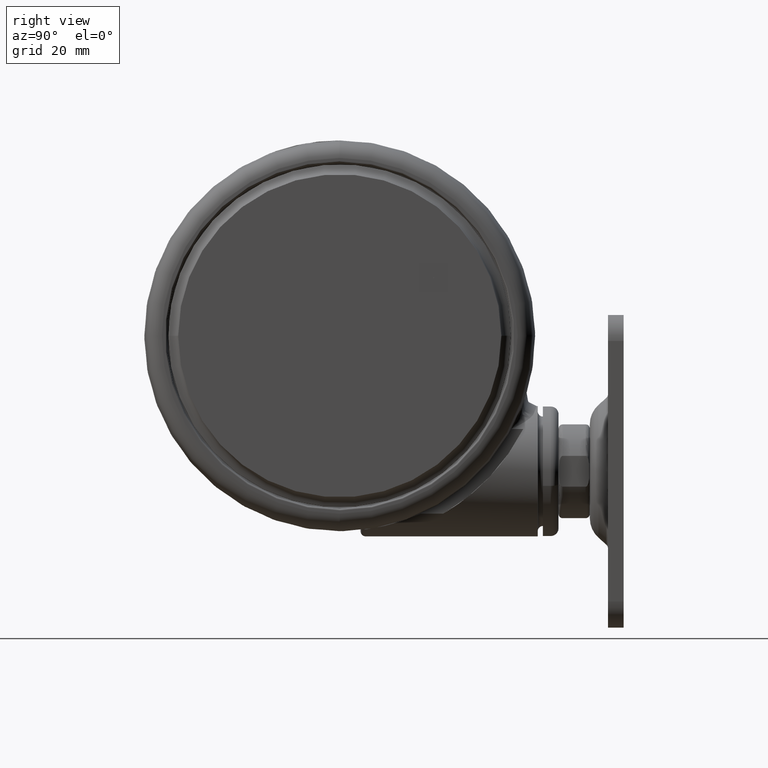
[diagram: clean part render]
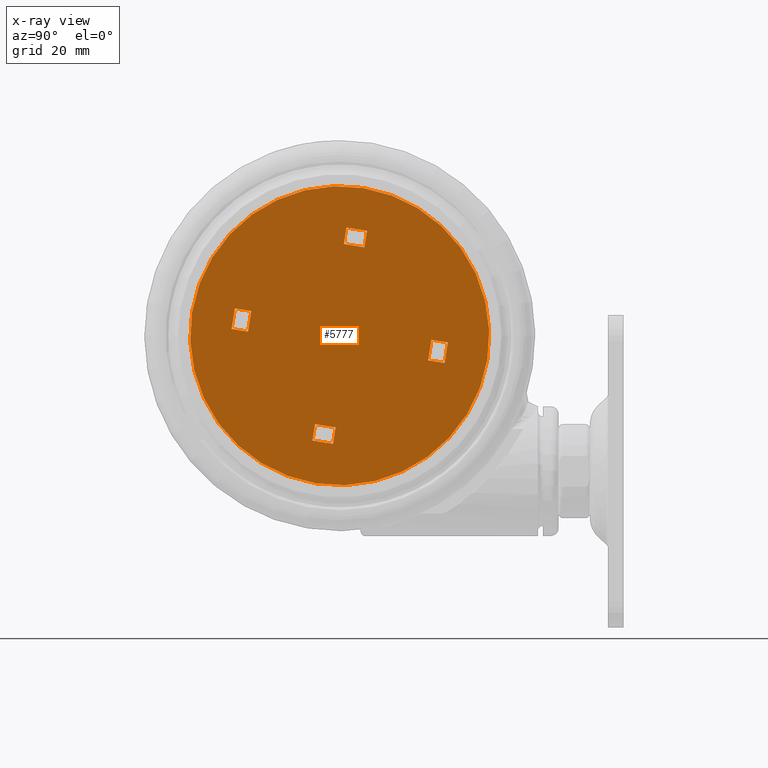
[diagram: x-ray — body ghosted, one internal face saturated and labeled with its STEP entity id]
A machine part, right view, then the same camera in x-ray: the body is ghosted and one INTERNAL B-rep face — a face not visible from any outside direction — is saturated and labeled: STEP entity #5777.
In plain terms, the highlighted planar face has unit normal (-1, 0, -0).
Its self-contained STEP definition (entity closure, byte-faithful):
#74 = VECTOR ( 'NONE', #13027, 1000.000000000000000 ) ;
#245 = VECTOR ( 'NONE', #28384, 1000.000000000000000 ) ;
#261 = VERTEX_POINT ( 'NONE', #44401 ) ;
#431 = ORIENTED_EDGE ( 'NONE', *, *, #19134, .F. ) ;
#1046 = ORIENTED_EDGE ( 'NONE', *, *, #34188, .F. ) ;
#1061 = VECTOR ( 'NONE', #26505, 1000.000000000000000 ) ;
#1874 = ORIENTED_EDGE ( 'NONE', *, *, #32125, .F. ) ;
#2422 = DIRECTION ( 'NONE',  ( 0.0000000000000000000, -0.0000000000000000000, 1.000000000000000000 ) ) ;
#2484 = LINE ( 'NONE', #53618, #1061 ) ;
#3315 = CARTESIAN_POINT ( 'NONE',  ( -0.7822703933287131800, -17.59653525645661900, -46.19999999999990300 ) ) ;
#3818 = VECTOR ( 'NONE', #45407, 1000.000000000000100 ) ;
#4135 = CARTESIAN_POINT ( 'NONE',  ( -20.12632811466651000, 5.236498507665566600, -46.19999999999990300 ) ) ;
#4250 = VECTOR ( 'NONE', #57992, 1000.000000000000200 ) ;
#4413 = VECTOR ( 'NONE', #30385, 1000.000000000000200 ) ;
#4506 = EDGE_CURVE ( 'NONE', #43500, #46352, #15995, .T. ) ;
#5777 = ADVANCED_FACE ( 'NONE', ( #52924, #31551, #17968, #40842, #28676 ), #21752, .F. ) ;
#5838 = VECTOR ( 'NONE', #10988, 999.9999999999998900 ) ;
#6310 = ORIENTED_EDGE ( 'NONE', *, *, #29390, .T. ) ;
#7433 = DIRECTION ( 'NONE',  ( 0.1575593953139921800, 0.9875095123330656100, 0.0000000000000000000 ) ) ;
#8017 = VERTEX_POINT ( 'NONE', #50682 ) ;
#8452 = VERTEX_POINT ( 'NONE', #18929 ) ;
#9074 = LINE ( 'NONE', #56361, #31875 ) ;
#9484 = CARTESIAN_POINT ( 'NONE',  ( -16.96629767520070000, 4.732308442660824200, -46.19999999999990300 ) ) ;
#10375 = ORIENTED_EDGE ( 'NONE', *, *, #14807, .T. ) ;
#10988 = DIRECTION ( 'NONE',  ( -0.1575593953139853000, -0.9875095123330668300, 0.0000000000000000000 ) ) ;
#12330 = ORIENTED_EDGE ( 'NONE', *, *, #18005, .T. ) ;
#12417 = VERTEX_POINT ( 'NONE', #22618 ) ;
#12813 = DIRECTION ( 'NONE',  ( -0.1575593953139821600, -0.9875095123330671600, 0.0000000000000000000 ) ) ;
#12961 = VERTEX_POINT ( 'NONE', #23136 ) ;
#13027 = DIRECTION ( 'NONE',  ( 0.9875095123330672700, -0.1575593953139818300, 0.0000000000000000000 ) ) ;
#14206 = EDGE_CURVE ( 'NONE', #53608, #22767, #39370, .T. ) ;
#14368 = VECTOR ( 'NONE', #31644, 1000.000000000000200 ) ;
#14728 = VERTEX_POINT ( 'NONE', #43900 ) ;
#14807 = EDGE_CURVE ( 'NONE', #34600, #22790, #25603, .T. ) ;
#14934 = CARTESIAN_POINT ( 'NONE',  ( -5.236498507665760200, -20.12632811466649600, -46.19999999999990300 ) ) ;
#15131 = CARTESIAN_POINT ( 'NONE',  ( -17.59653525645663000, 0.7822703933285544100, -46.19999999999990300 ) ) ;
#15688 = CARTESIAN_POINT ( 'NONE',  ( 5.236498507665655400, 20.12632811466651700, -46.19999999999990300 ) ) ;
#15995 = LINE ( 'NONE', #4135, #50932 ) ;
#16542 = VECTOR ( 'NONE', #54326, 1000.000000000000200 ) ;
#17086 = EDGE_CURVE ( 'NONE', #53608, #55721, #33941, .T. ) ;
#17968 = FACE_BOUND ( 'NONE', #41824, .T. ) ;
#18005 = EDGE_CURVE ( 'NONE', #14728, #20097, #27395, .T. ) ;
#18067 = CARTESIAN_POINT ( 'NONE',  ( 5.236498507665655400, 20.12632811466651700, -46.19999999999990300 ) ) ;
#18929 = CARTESIAN_POINT ( 'NONE',  ( 1.286460458333385200, 20.75656569592245000, -46.19999999999990300 ) ) ;
#19134 = EDGE_CURVE ( 'NONE', #34600, #46352, #2484, .T. ) ;
#19135 = AXIS2_PLACEMENT_3D ( 'NONE', #29669, #2422, #34276 ) ;
#19498 = CARTESIAN_POINT ( 'NONE',  ( -1.286460458333490700, -20.75656569592242600, -46.19999999999990300 ) ) ;
#19600 = EDGE_CURVE ( 'NONE', #8452, #27390, #52275, .T. ) ;
#20097 = VERTEX_POINT ( 'NONE', #54627 ) ;
#20110 = CARTESIAN_POINT ( 'NONE',  ( 0.7822703933286325700, 17.59653525645663700, -46.19999999999990300 ) ) ;
#20712 = LINE ( 'NONE', #20110, #43577 ) ;
#20812 = CARTESIAN_POINT ( 'NONE',  ( 1.908195823574487800E-014, 0.0000000000000000000, -46.19999999999990300 ) ) ;
#21752 = PLANE ( 'NONE',  #27345 ) ;
#22221 = ORIENTED_EDGE ( 'NONE', *, *, #24161, .T. ) ;
#22618 = CARTESIAN_POINT ( 'NONE',  ( 0.7822703933286325700, 17.59653525645663700, -46.19999999999990300 ) ) ;
#22637 = VECTOR ( 'NONE', #7433, 1000.000000000000200 ) ;
#22767 = VERTEX_POINT ( 'NONE', #14934 ) ;
#22790 = VERTEX_POINT ( 'NONE', #15131 ) ;
#23136 = CARTESIAN_POINT ( 'NONE',  ( 20.75656569592247500, -1.286460458333297300, -46.19999999999990300 ) ) ;
#23312 = EDGE_CURVE ( 'NONE', #12961, #8017, #57910, .T. ) ;
#24161 = EDGE_CURVE ( 'NONE', #47727, #22767, #55646, .T. ) ;
#24599 = CARTESIAN_POINT ( 'NONE',  ( 5.078939112351667600, 19.13881860233344800, -46.19999999999990300 ) ) ;
#25375 = DIRECTION ( 'NONE',  ( -0.1575593953139821600, -0.9875095123330672700, 0.0000000000000000000 ) ) ;
#25603 = LINE ( 'NONE', #39898, #4250 ) ;
#25762 = CARTESIAN_POINT ( 'NONE',  ( -5.078939112351768000, -19.13881860233342600, -46.19999999999990300 ) ) ;
#26226 = DIRECTION ( 'NONE',  ( 0.1575593953139821600, 0.9875095123330671600, -0.0000000000000000000 ) ) ;
#26505 = DIRECTION ( 'NONE',  ( -0.9875095123330672700, 0.1575593953139818300, 0.0000000000000000000 ) ) ;
#27027 = CARTESIAN_POINT ( 'NONE',  ( 20.12632811466654600, -5.236498507665566600, -46.19999999999990300 ) ) ;
#27052 = CARTESIAN_POINT ( 'NONE',  ( 17.59653525645666500, -0.7822703933285544100, -46.19999999999990300 ) ) ;
#27345 = AXIS2_PLACEMENT_3D ( 'NONE', #30954, #40137, #12813 ) ;
#27390 = VERTEX_POINT ( 'NONE', #15688 ) ;
#27395 = CIRCLE ( 'NONE', #19135, 28.70000000000000600 ) ;
#28384 = DIRECTION ( 'NONE',  ( -0.9875095123330672700, 0.1575593953139818300, 0.0000000000000000000 ) ) ;
#28676 = FACE_BOUND ( 'NONE', #40747, .T. ) ;
#28925 = CIRCLE ( 'NONE', #52735, 28.70000000000000600 ) ;
#29098 = DIRECTION ( 'NONE',  ( 0.9875095123330672700, -0.1575593953139818300, 0.0000000000000000000 ) ) ;
#29390 = EDGE_CURVE ( 'NONE', #261, #8017, #36535, .T. ) ;
#29627 = CARTESIAN_POINT ( 'NONE',  ( 20.12632811466654600, -5.236498507665566600, -46.19999999999990300 ) ) ;
#29669 = CARTESIAN_POINT ( 'NONE',  ( 1.908195823574487800E-014, 0.0000000000000000000, -46.19999999999990300 ) ) ;
#29783 = VERTEX_POINT ( 'NONE', #29627 ) ;
#30385 = DIRECTION ( 'NONE',  ( -0.1575593953139921800, -0.9875095123330656100, 0.0000000000000000000 ) ) ;
#30954 = CARTESIAN_POINT ( 'NONE',  ( 1.908195823574487800E-014, 0.0000000000000000000, -46.19999999999990300 ) ) ;
#31007 = ORIENTED_EDGE ( 'NONE', *, *, #14206, .F. ) ;
#31551 = FACE_BOUND ( 'NONE', #35435, .T. ) ;
#31644 = DIRECTION ( 'NONE',  ( -0.1575593953139821600, -0.9875095123330671600, -0.0000000000000000000 ) ) ;
#31875 = VECTOR ( 'NONE', #29098, 1000.000000000000000 ) ;
#31924 = ORIENTED_EDGE ( 'NONE', *, *, #4506, .T. ) ;
#32125 = EDGE_CURVE ( 'NONE', #47727, #55721, #34826, .T. ) ;
#33941 = LINE ( 'NONE', #3315, #56702 ) ;
#34188 = EDGE_CURVE ( 'NONE', #40050, #27390, #37461, .T. ) ;
#34276 = DIRECTION ( 'NONE',  ( -0.1575593953139821600, -0.9875095123330672700, 0.0000000000000000000 ) ) ;
#34600 = VERTEX_POINT ( 'NONE', #9484 ) ;
#34826 = LINE ( 'NONE', #53229, #22637 ) ;
#35128 = CARTESIAN_POINT ( 'NONE',  ( -4.732308442660982300, -16.96629767520068900, -46.19999999999990300 ) ) ;
#35435 = EDGE_LOOP ( 'NONE', ( #58953, #46084, #57346, #6310 ) ) ;
#35791 = CARTESIAN_POINT ( 'NONE',  ( 19.13881860233347600, -5.078939112351584100, -46.19999999999990300 ) ) ;
#36535 = LINE ( 'NONE', #27052, #16542 ) ;
#36787 = CARTESIAN_POINT ( 'NONE',  ( -5.236498507665760200, -20.12632811466649600, -46.19999999999990300 ) ) ;
#37461 = LINE ( 'NONE', #24599, #48107 ) ;
#38236 = DIRECTION ( 'NONE',  ( 0.1575593953139853000, 0.9875095123330668300, 0.0000000000000000000 ) ) ;
#38611 = LINE ( 'NONE', #27027, #14368 ) ;
#39370 = LINE ( 'NONE', #25762, #4413 ) ;
#39898 = CARTESIAN_POINT ( 'NONE',  ( -17.59653525645663000, 0.7822703933285544100, -46.19999999999990300 ) ) ;
#40050 = VERTEX_POINT ( 'NONE', #41035 ) ;
#40137 = DIRECTION ( 'NONE',  ( -0.0000000000000000000, 0.0000000000000000000, -1.000000000000000000 ) ) ;
#40721 = CARTESIAN_POINT ( 'NONE',  ( -20.12632811466651000, 5.236498507665566600, -46.19999999999990300 ) ) ;
#40747 = EDGE_LOOP ( 'NONE', ( #31007, #52507, #1874, #22221 ) ) ;
#40842 = FACE_BOUND ( 'NONE', #51662, .T. ) ;
#41035 = CARTESIAN_POINT ( 'NONE',  ( 4.732308442660902300, 16.96629767520071000, -46.19999999999990300 ) ) ;
#41259 = ORIENTED_EDGE ( 'NONE', *, *, #52232, .F. ) ;
#41385 = DIRECTION ( 'NONE',  ( -0.9875095123330656100, 0.1575593953139925700, -0.0000000000000000000 ) ) ;
#41448 = EDGE_CURVE ( 'NONE', #261, #29783, #48490, .T. ) ;
#41824 = EDGE_LOOP ( 'NONE', ( #52937, #31924, #431, #10375 ) ) ;
#43500 = VERTEX_POINT ( 'NONE', #46347 ) ;
#43577 = VECTOR ( 'NONE', #47250, 1000.000000000000100 ) ;
#43609 = VECTOR ( 'NONE', #41385, 1000.000000000000100 ) ;
#43900 = CARTESIAN_POINT ( 'NONE',  ( -4.521954645511270200, -28.34152300395903600, -46.19999999999990300 ) ) ;
#44176 = EDGE_CURVE ( 'NONE', #40050, #12417, #20712, .T. ) ;
#44324 = EDGE_LOOP ( 'NONE', ( #12330, #48148 ) ) ;
#44401 = CARTESIAN_POINT ( 'NONE',  ( 16.96629767520073500, -4.732308442660824200, -46.19999999999990300 ) ) ;
#45407 = DIRECTION ( 'NONE',  ( 0.9875095123330667200, -0.1575593953139856600, -0.0000000000000000000 ) ) ;
#46084 = ORIENTED_EDGE ( 'NONE', *, *, #52568, .T. ) ;
#46347 = CARTESIAN_POINT ( 'NONE',  ( -20.75656569592244300, 1.286460458333297300, -46.19999999999990300 ) ) ;
#46352 = VERTEX_POINT ( 'NONE', #40721 ) ;
#47250 = DIRECTION ( 'NONE',  ( -0.9875095123330667200, 0.1575593953139856600, -0.0000000000000000000 ) ) ;
#47435 = CARTESIAN_POINT ( 'NONE',  ( 1.128901063019398100, 19.76905618358938100, -46.19999999999990300 ) ) ;
#47727 = VERTEX_POINT ( 'NONE', #19498 ) ;
#48107 = VECTOR ( 'NONE', #38236, 999.9999999999998900 ) ;
#48148 = ORIENTED_EDGE ( 'NONE', *, *, #48422, .T. ) ;
#48422 = EDGE_CURVE ( 'NONE', #20097, #14728, #28925, .T. ) ;
#48490 = LINE ( 'NONE', #35791, #74 ) ;
#50682 = CARTESIAN_POINT ( 'NONE',  ( 17.59653525645666500, -0.7822703933285544100, -46.19999999999990300 ) ) ;
#50932 = VECTOR ( 'NONE', #26226, 1000.000000000000200 ) ;
#51172 = ORIENTED_EDGE ( 'NONE', *, *, #44176, .T. ) ;
#51662 = EDGE_LOOP ( 'NONE', ( #1046, #51172, #41259, #52922 ) ) ;
#52232 = EDGE_CURVE ( 'NONE', #8452, #12417, #54260, .T. ) ;
#52275 = LINE ( 'NONE', #18067, #3818 ) ;
#52507 = ORIENTED_EDGE ( 'NONE', *, *, #17086, .T. ) ;
#52568 = EDGE_CURVE ( 'NONE', #12961, #29783, #38611, .T. ) ;
#52707 = DIRECTION ( 'NONE',  ( 0.0000000000000000000, -0.0000000000000000000, 1.000000000000000000 ) ) ;
#52735 = AXIS2_PLACEMENT_3D ( 'NONE', #20812, #52707, #25375 ) ;
#52922 = ORIENTED_EDGE ( 'NONE', *, *, #19600, .T. ) ;
#52924 = FACE_OUTER_BOUND ( 'NONE', #44324, .T. ) ;
#52937 = ORIENTED_EDGE ( 'NONE', *, *, #56367, .F. ) ;
#53229 = CARTESIAN_POINT ( 'NONE',  ( -1.128901063019498400, -19.76905618358935600, -46.19999999999990300 ) ) ;
#53608 = VERTEX_POINT ( 'NONE', #35128 ) ;
#53618 = CARTESIAN_POINT ( 'NONE',  ( -19.13881860233344100, 5.078939112351584100, -46.19999999999990300 ) ) ;
#54260 = LINE ( 'NONE', #47435, #5838 ) ;
#54326 = DIRECTION ( 'NONE',  ( 0.1575593953139821600, 0.9875095123330671600, -0.0000000000000000000 ) ) ;
#54627 = CARTESIAN_POINT ( 'NONE',  ( 4.521954645511305800, 28.34152300395903600, -46.19999999999990300 ) ) ;
#55447 = CARTESIAN_POINT ( 'NONE',  ( -0.7822703933287131800, -17.59653525645661900, -46.19999999999990300 ) ) ;
#55637 = CARTESIAN_POINT ( 'NONE',  ( 19.76905618358940900, -1.128901063019314800, -46.19999999999990300 ) ) ;
#55646 = LINE ( 'NONE', #36787, #43609 ) ;
#55721 = VERTEX_POINT ( 'NONE', #55447 ) ;
#56361 = CARTESIAN_POINT ( 'NONE',  ( -19.76905618358937400, 1.128901063019314800, -46.19999999999990300 ) ) ;
#56367 = EDGE_CURVE ( 'NONE', #43500, #22790, #9074, .T. ) ;
#56702 = VECTOR ( 'NONE', #58071, 1000.000000000000100 ) ;
#57346 = ORIENTED_EDGE ( 'NONE', *, *, #41448, .F. ) ;
#57910 = LINE ( 'NONE', #55637, #245 ) ;
#57992 = DIRECTION ( 'NONE',  ( -0.1575593953139821600, -0.9875095123330671600, -0.0000000000000000000 ) ) ;
#58071 = DIRECTION ( 'NONE',  ( 0.9875095123330656100, -0.1575593953139925700, -0.0000000000000000000 ) ) ;
#58953 = ORIENTED_EDGE ( 'NONE', *, *, #23312, .F. ) ;